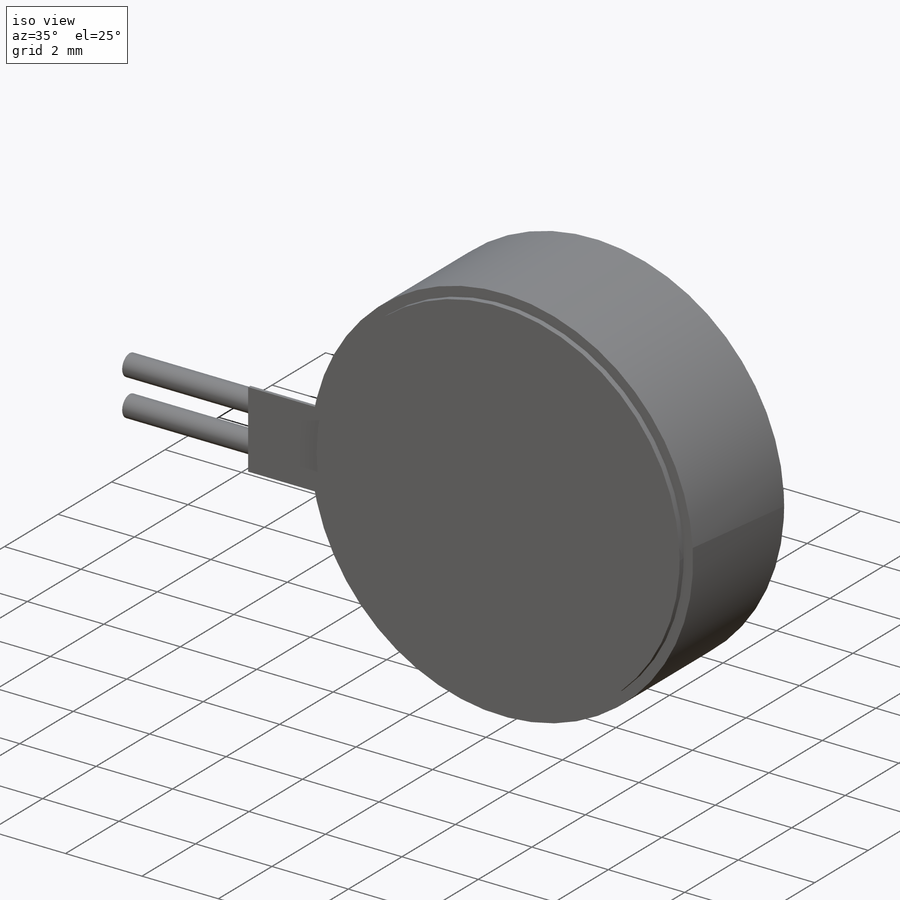
[diagram: iso view]
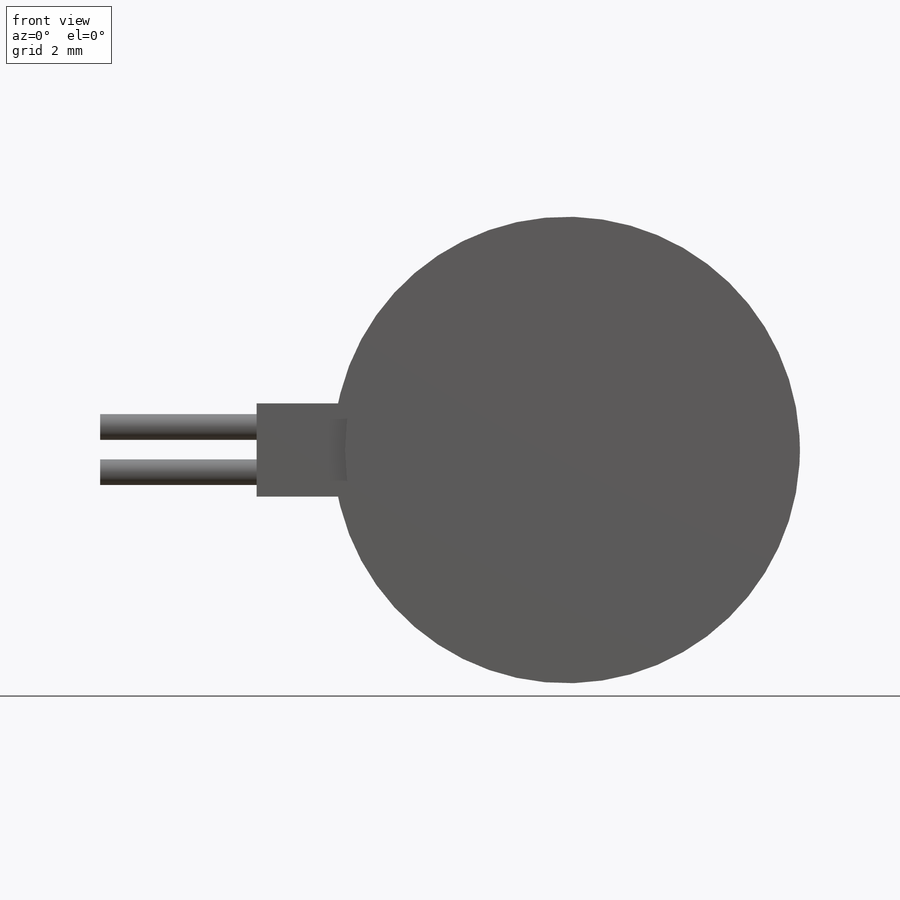
[diagram: front view]
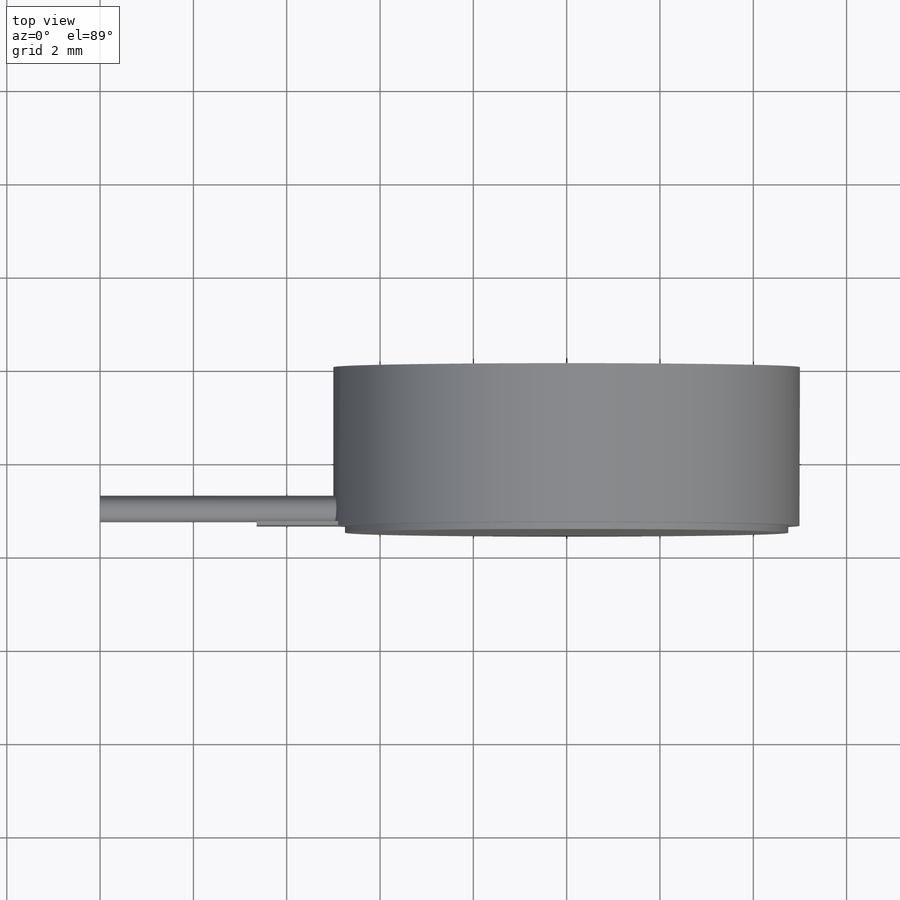
[diagram: top view]
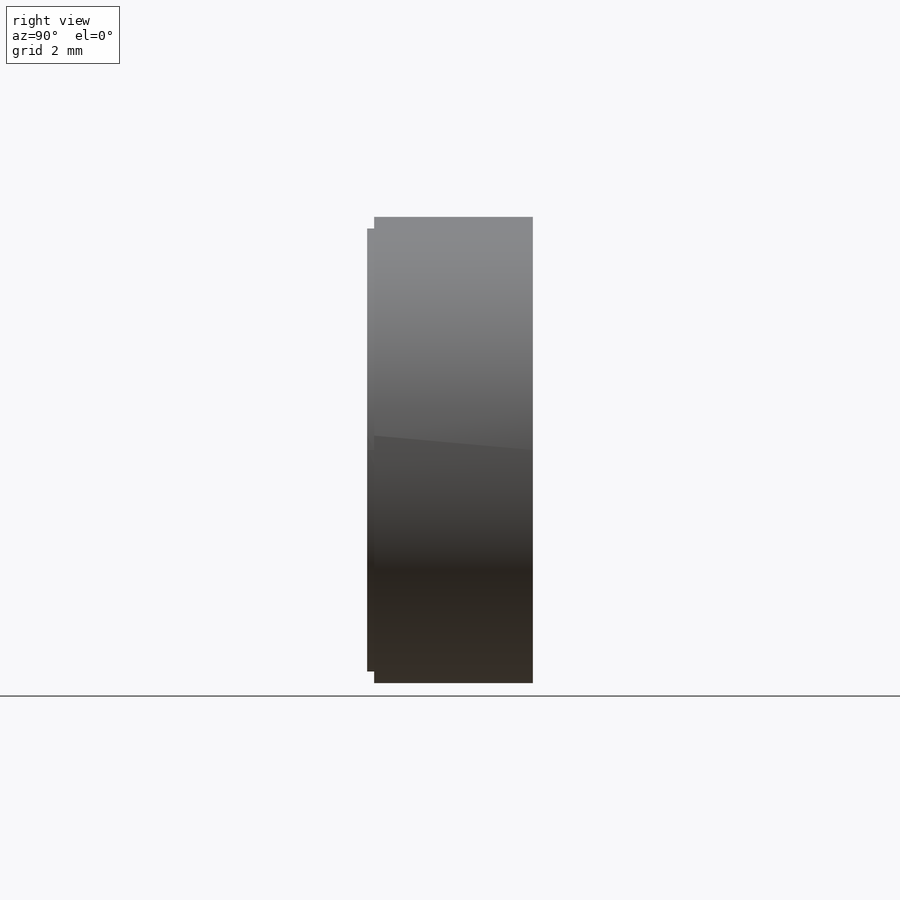
[diagram: right view]
SOLIDWORKS PART (.sldprt)
format: sldprt  version: not decoded by parser v0  size: 164,352 bytes
history: native  units: mm
features: sketch x4, extrude x4, material x1 + 1 further entry (+12 scaffold rows collapsed)
feature tree (22):
  scaffold x12  (default folders/planes/origin — collapsed)
  material  "Material <not specified>"
  "Annotations"  RD1=10mm
  sketch  "Sketch1"  dims[D1=10.0mm]
  extrude  "Boss-Extrude1"  Depth=3.4mm
  sketch  "Sketch2"  dims[D1=9.5mm]
  extrude  "Boss-Extrude2"  Depth=0.15mm
  sketch  "Sketch4"  dims[D1=2.0mm]
  extrude  "Boss-Extrude3"  Depth=0.085mm
  sketch  "Sketch5"  dims[D1=0.55mm D2=0.55mm]
  extrude  "Boss-Extrude5"  Depth=10mm
decode coverage: 8 of 8 modeling features carry decoded parameters; 1 rows unclassified (native names shown)
note: suppression state not decoded; provenance and decode notes live in map.json
